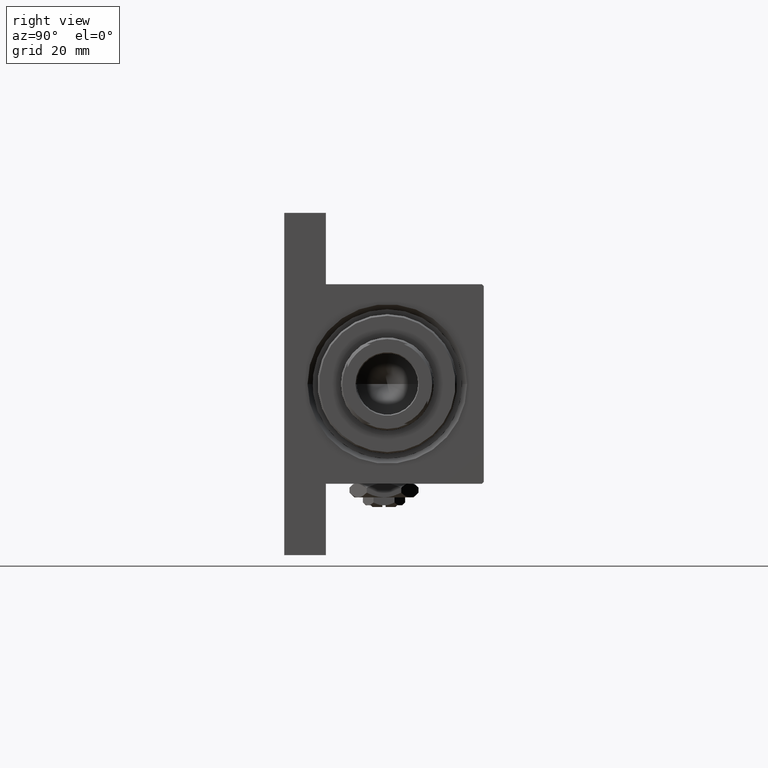
[diagram: clean part render]
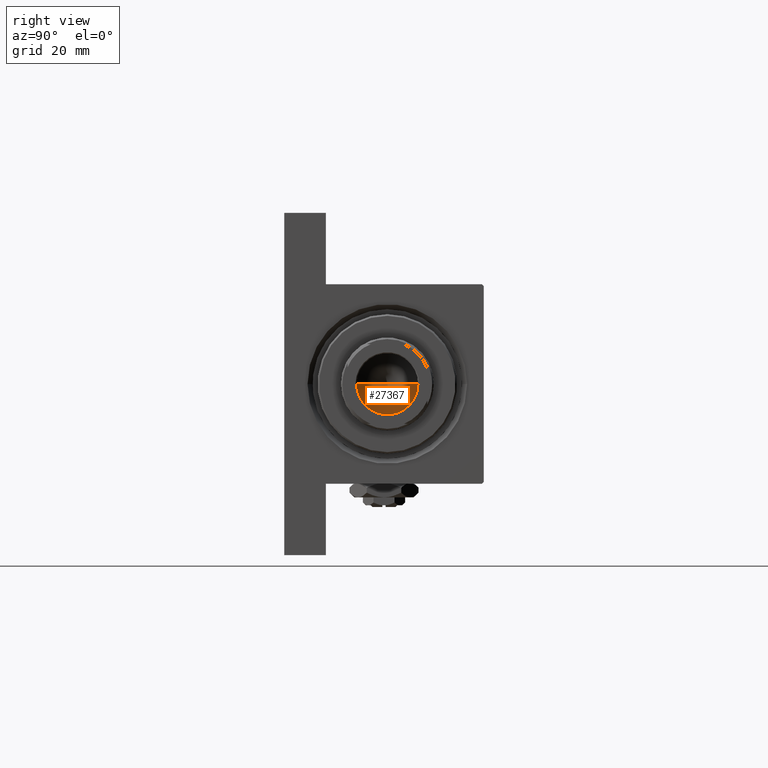
[diagram: same view with one face highlighted and labeled with its STEP entity id]
A machine part, right view. The second image highlights one B-rep face of the part: STEP entity #27367.
In plain terms, the highlighted conical surface has half-angle 59 deg.
Its self-contained STEP definition (entity closure, byte-faithful):
#2119 = LINE ( 'NONE', #17352, #47878 ) ;
#2587 = CARTESIAN_POINT ( 'NONE',  ( 0.000000000000000000, 0.000000000000000000, 101.0000000000000000 ) ) ;
#3371 = VECTOR ( 'NONE', #18661, 1000.000000000000000 ) ;
#4741 = EDGE_CURVE ( 'NONE', #7308, #12606, #2119, .T. ) ;
#5452 = CARTESIAN_POINT ( 'NONE',  ( 9.249999999999992895, 0.000000000000000000, 101.0000000000000000 ) ) ;
#7308 = VERTEX_POINT ( 'NONE', #30405 ) ;
#7441 = LINE ( 'NONE', #49085, #3371 ) ;
#8924 = ORIENTED_EDGE ( 'NONE', *, *, #26428, .T. ) ;
#11044 = CIRCLE ( 'NONE', #26935, 9.249999999999992895 ) ;
#12606 = VERTEX_POINT ( 'NONE', #26589 ) ;
#12684 = AXIS2_PLACEMENT_3D ( 'NONE', #39703, #35719, #35969 ) ;
#14084 = DIRECTION ( 'NONE',  ( 1.000000000000000000, 0.000000000000000000, 0.000000000000000000 ) ) ;
#15336 = EDGE_LOOP ( 'NONE', ( #33230, #38670, #8924 ) ) ;
#17352 = CARTESIAN_POINT ( 'NONE',  ( -9.249999999999992895, 1.132798289211300712E-15, 101.0000000000000000 ) ) ;
#17599 = DIRECTION ( 'NONE',  ( -0.8571673007021117785, 1.049727191138617956E-16, 0.5150380749100550437 ) ) ;
#18661 = DIRECTION ( 'NONE',  ( 0.8571673007021117785, 0.000000000000000000, 0.5150380749100550437 ) ) ;
#26428 = EDGE_CURVE ( 'NONE', #46450, #12606, #11044, .T. ) ;
#26589 = CARTESIAN_POINT ( 'NONE',  ( -9.249999999999992895, 1.132798289211300712E-15, 101.0000000000000000 ) ) ;
#26935 = AXIS2_PLACEMENT_3D ( 'NONE', #2587, #45158, #14084 ) ;
#27367 = ADVANCED_FACE ( 'NONE', ( #40440 ), #37329, .F. ) ;
#30405 = CARTESIAN_POINT ( 'NONE',  ( -9.769621978240258809E-15, 0.000000000000000000, 95.44203927399506426 ) ) ;
#33230 = ORIENTED_EDGE ( 'NONE', *, *, #4741, .F. ) ;
#35719 = DIRECTION ( 'NONE',  ( -0.000000000000000000, -0.000000000000000000, 1.000000000000000000 ) ) ;
#35969 = DIRECTION ( 'NONE',  ( 1.000000000000000000, 0.000000000000000000, 0.000000000000000000 ) ) ;
#37329 = CONICAL_SURFACE ( 'NONE', #12684, 9.249999999999992895, 1.029744258676653423 ) ;
#38670 = ORIENTED_EDGE ( 'NONE', *, *, #39522, .T. ) ;
#39522 = EDGE_CURVE ( 'NONE', #7308, #46450, #7441, .T. ) ;
#39703 = CARTESIAN_POINT ( 'NONE',  ( 0.000000000000000000, 0.000000000000000000, 101.0000000000000000 ) ) ;
#40440 = FACE_OUTER_BOUND ( 'NONE', #15336, .T. ) ;
#45158 = DIRECTION ( 'NONE',  ( -0.000000000000000000, -0.000000000000000000, 1.000000000000000000 ) ) ;
#46450 = VERTEX_POINT ( 'NONE', #5452 ) ;
#47878 = VECTOR ( 'NONE', #17599, 1000.000000000000000 ) ;
#49085 = CARTESIAN_POINT ( 'NONE',  ( 9.249999999999992895, 0.000000000000000000, 101.0000000000000000 ) ) ;